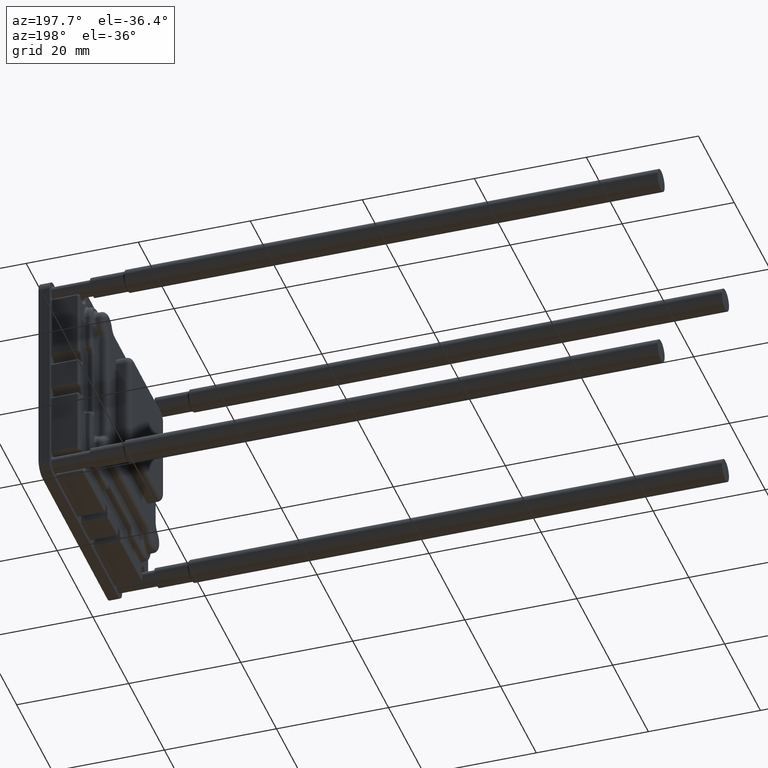
[diagram: clean part render]
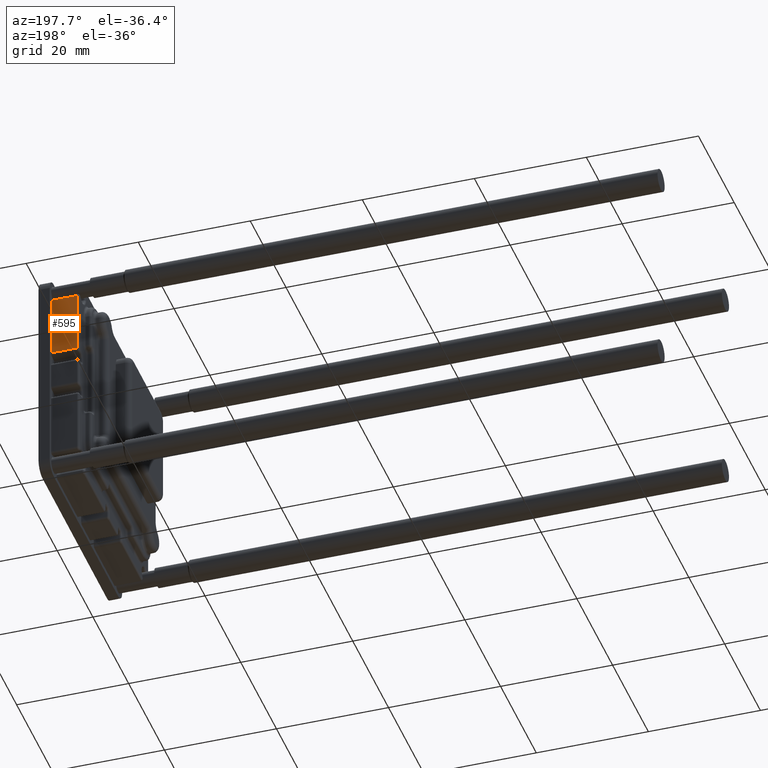
[diagram: same view with one face highlighted and labeled with its STEP entity id]
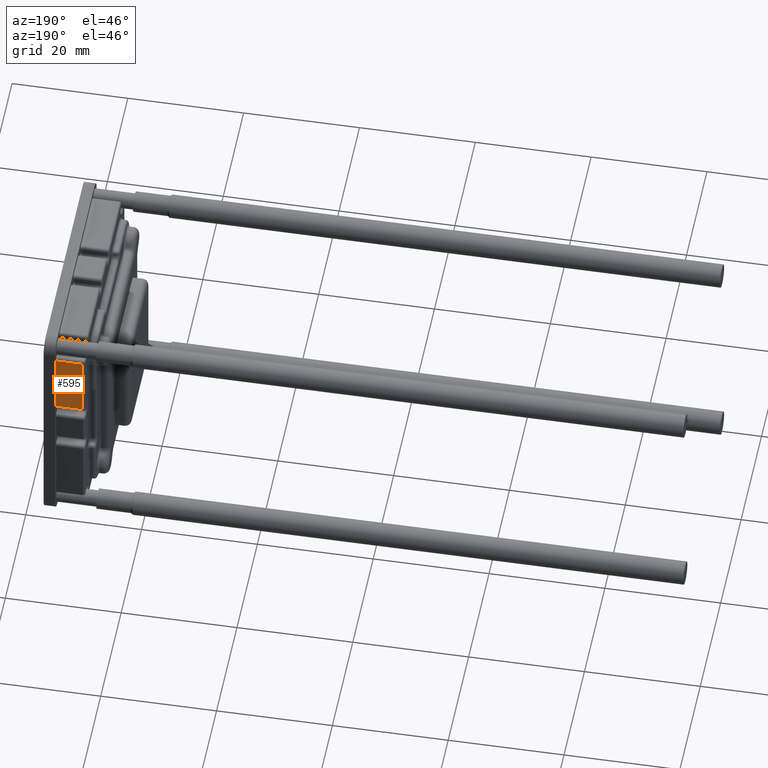
[diagram: same view with one face highlighted and labeled with its STEP entity id]
A machine part, auxiliary view. The second image highlights one B-rep face of the part: STEP entity #595.
A second angle (auxiliary view) of the same face is appended — the face is thin or edge-on in the first view.
In plain terms, the highlighted planar face has unit normal (0, 1, 0).
Its self-contained STEP definition (entity closure, byte-faithful):
#595=ADVANCED_FACE('',(#1025),#3901,.T.);
#1025=FACE_OUTER_BOUND('',#1468,.F.);
#1468=EDGE_LOOP('',(#2315,#2316,#2317,#2318));
#2315=ORIENTED_EDGE('',*,*,#5834,.F.);
#2316=ORIENTED_EDGE('',*,*,#5604,.T.);
#2317=ORIENTED_EDGE('',*,*,#5835,.T.);
#2318=ORIENTED_EDGE('',*,*,#5551,.T.);
#3901=PLANE('',#8617);
#5551=EDGE_CURVE('',#7772,#7770,#6493,.T.);
#5604=EDGE_CURVE('',#7726,#7727,#6516,.T.);
#5834=EDGE_CURVE('',#7726,#7770,#6670,.T.);
#5835=EDGE_CURVE('',#7727,#7772,#6671,.T.);
#6493=LINE('',#12170,#6941);
#6516=LINE('',#12223,#6964);
#6670=LINE('',#12453,#7118);
#6671=LINE('',#12454,#7119);
#6941=VECTOR('',#9186,11.0713974451065);
#6964=VECTOR('',#9269,11.0713974375404);
#7118=VECTOR('',#9575,4.59999999999999);
#7119=VECTOR('',#9576,4.59999999999998);
#7726=VERTEX_POINT('',#11825);
#7727=VERTEX_POINT('',#11826);
#7770=VERTEX_POINT('',#11869);
#7772=VERTEX_POINT('',#11871);
#8617=AXIS2_PLACEMENT_3D('',#13135,#10735,#10736);
#9186=DIRECTION('',(0.,1.5132121140635E-08,-1.));
#9269=DIRECTION('',(0.,-1.51321211509761E-08,1.));
#9575=DIRECTION('',(-1.,0.,0.));
#9576=DIRECTION('',(-1.,0.,0.));
#10735=DIRECTION('',(0.,1.,1.51321208896604E-08));
#10736=DIRECTION('',(0.,1.51321201945946E-08,-1.));
#11825=CARTESIAN_POINT('',(74.8649997447654,-180.550001942974,40.8500070858143));
#11826=CARTESIAN_POINT('',(74.8649997447654,-180.550002110508,51.9214045258767));
#11869=CARTESIAN_POINT('',(70.2649997447654,-180.550001942974,40.8500070832923));
#11871=CARTESIAN_POINT('',(70.2649997447654,-180.550002110508,51.9214045283988));
#12170=CARTESIAN_POINT('',(70.2649997447654,-180.550002110508,51.9214045283988));
#12223=CARTESIAN_POINT('',(74.8649997447654,-180.550001942974,40.8500070908584));
#12453=CARTESIAN_POINT('',(74.8649997447654,-180.550001942974,40.8500070832923));
#12454=CARTESIAN_POINT('',(74.8649997447654,-180.550002110508,51.9214045283988));
#13135=CARTESIAN_POINT('',(74.9757137191408,-180.550002112183,52.0321185027742));